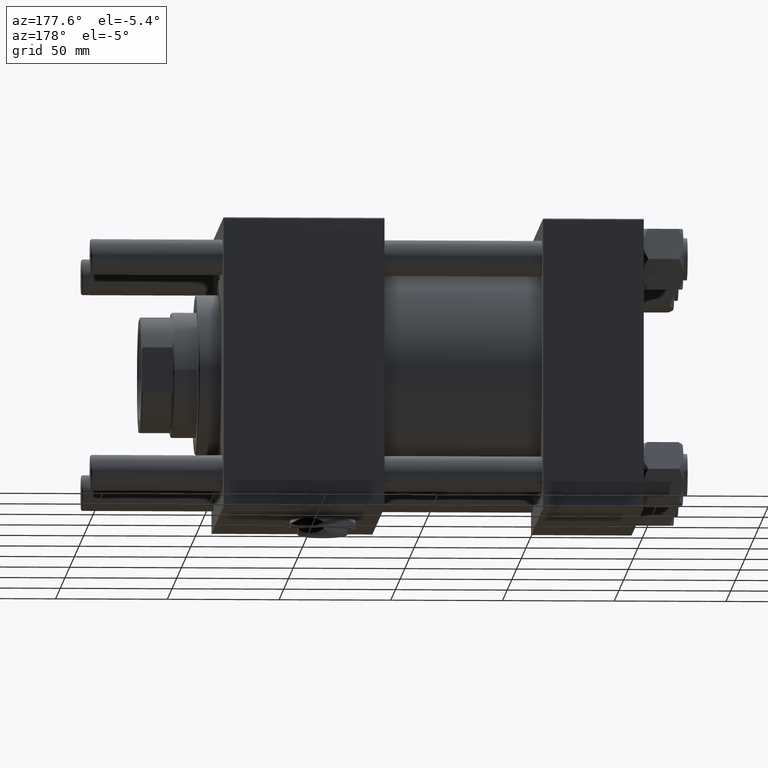
[diagram: clean part render]
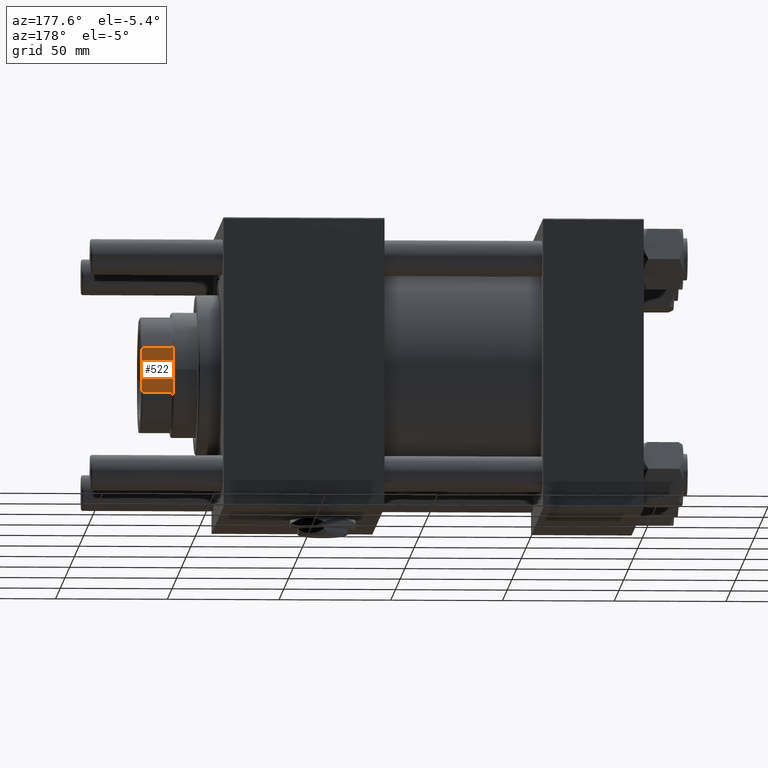
[diagram: same view with one face highlighted and labeled with its STEP entity id]
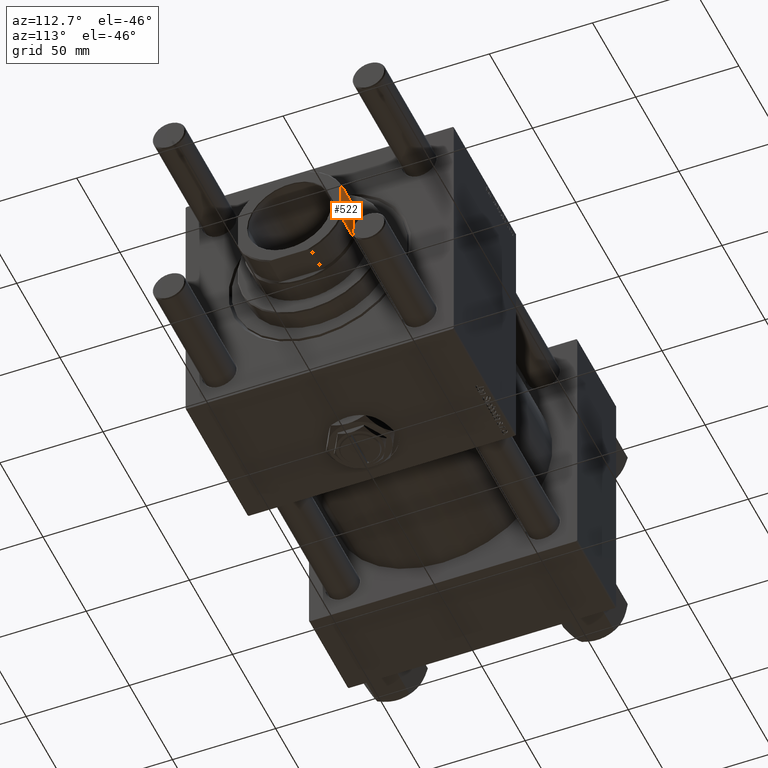
[diagram: same view with one face highlighted and labeled with its STEP entity id]
A machine part, auxiliary view. The second image highlights one B-rep face of the part: STEP entity #522.
A second angle (auxiliary view) of the same face is appended — the face is thin or edge-on in the first view.
In plain terms, the highlighted planar face has unit normal (0, -1, -0).
Its self-contained STEP definition (entity closure, byte-faithful):
#58 = CARTESIAN_POINT ( 'NONE',  ( -24.99999999999999645, -9.262276112429436381, 177.8430951735361134 ) ) ;
#347 = CARTESIAN_POINT ( 'NONE',  ( -25.00000000000000000, -9.731776668926020335, 177.6761096935718456 ) ) ;
#522 = ADVANCED_FACE ( 'NONE', ( #12196 ), #30365, .F. ) ;
#573 = ORIENTED_EDGE ( 'NONE', *, *, #45020, .T. ) ;
#597 = DIRECTION ( 'NONE',  ( 1.387778780781445676E-16, -1.000000000000000000, 0.000000000000000000 ) ) ;
#1130 = EDGE_LOOP ( 'NONE', ( #26524, #573, #20632, #1189, #47088, #37502, #26768, #26858 ) ) ;
#1189 = ORIENTED_EDGE ( 'NONE', *, *, #41474, .T. ) ;
#1271 = EDGE_CURVE ( 'NONE', #27391, #18471, #41423, .T. ) ;
#2229 = LINE ( 'NONE', #16247, #11367 ) ;
#3224 = DIRECTION ( 'NONE',  ( 1.000000000000000000, 1.387778780781445922E-16, -0.000000000000000000 ) ) ;
#3314 = CARTESIAN_POINT ( 'NONE',  ( -25.00000000000000000, 10.19803902718555655, 177.5000000000000000 ) ) ;
#3432 = LINE ( 'NONE', #25512, #34828 ) ;
#4085 = CARTESIAN_POINT ( 'NONE',  ( -25.00000000000000000, 11.45643923738958492, 164.0000000000000000 ) ) ;
#5096 = CARTESIAN_POINT ( 'NONE',  ( -25.00000000000000000, -10.19803902718555300, 177.5000000000000568 ) ) ;
#6829 = AXIS2_PLACEMENT_3D ( 'NONE', #44067, #3224, #21417 ) ;
#8870 = CARTESIAN_POINT ( 'NONE',  ( -25.00000000000000000, 11.45643923738958492, 164.0000000000000000 ) ) ;
#9007 = LINE ( 'NONE', #50716, #53026 ) ;
#9755 = CARTESIAN_POINT ( 'NONE',  ( -25.00000000000000000, -11.45643923738959025, 164.0000000000000000 ) ) ;
#10866 = CARTESIAN_POINT ( 'NONE',  ( -25.00000000000000000, -10.62014219435931039, 164.3405694602838025 ) ) ;
#11367 = VECTOR ( 'NONE', #12086, 1000.000000000000000 ) ;
#11495 = DIRECTION ( 'NONE',  ( -0.000000000000000000, -0.000000000000000000, 1.000000000000000000 ) ) ;
#12086 = DIRECTION ( 'NONE',  ( -0.000000000000000000, -0.000000000000000000, 1.000000000000000000 ) ) ;
#12102 = EDGE_CURVE ( 'NONE', #18471, #44387, #52037, .T. ) ;
#12196 = FACE_OUTER_BOUND ( 'NONE', #1130, .T. ) ;
#12558 = VERTEX_POINT ( 'NONE', #52375 ) ;
#13342 = CARTESIAN_POINT ( 'NONE',  ( -25.00000000000000000, 10.19803902718555122, 164.5000000000000000 ) ) ;
#14136 = EDGE_CURVE ( 'NONE', #54751, #27391, #44631, .T. ) ;
#15329 = CARTESIAN_POINT ( 'NONE',  ( -25.00000000000000000, -11.45643923738959025, 164.0000000000000000 ) ) ;
#16247 = CARTESIAN_POINT ( 'NONE',  ( -25.00000000000000000, 10.19803902718555655, -0.001000000000001000089 ) ) ;
#17353 = VECTOR ( 'NONE', #597, 1000.000000000000000 ) ;
#18235 = CARTESIAN_POINT ( 'NONE',  ( -24.99999999999999645, -8.789197915623496726, 178.0000000000000284 ) ) ;
#18471 = VERTEX_POINT ( 'NONE', #9755 ) ;
#20632 = ORIENTED_EDGE ( 'NONE', *, *, #45997, .F. ) ;
#21413 = B_SPLINE_CURVE_WITH_KNOTS ( 'NONE', 3,
 ( #44153, #43864, #49221, #3314 ),
 .UNSPECIFIED., .F., .F.,
 ( 4, 4 ),
 ( 0.000000000000000000, 0.001494935877430153244 ),
 .UNSPECIFIED. ) ;
#21417 = DIRECTION ( 'NONE',  ( -1.387778780781445922E-16, 1.000000000000000000, 0.000000000000000000 ) ) ;
#21942 = B_SPLINE_CURVE_WITH_KNOTS ( 'NONE', 3,
 ( #5096, #347, #58, #18235 ),
 .UNSPECIFIED., .F., .F.,
 ( 4, 4 ),
 ( 0.000000000000000000, 0.001494935877429992349 ),
 .UNSPECIFIED. ) ;
#22864 = CARTESIAN_POINT ( 'NONE',  ( -25.00000000000000000, 10.19803902718555655, 177.5000000000000000 ) ) ;
#23576 = CARTESIAN_POINT ( 'NONE',  ( -25.00000000000000000, 10.19803902718555122, 164.5000000000000000 ) ) ;
#25512 = CARTESIAN_POINT ( 'NONE',  ( -25.00000000000000000, -10.19803902718555300, -0.001000000000001000089 ) ) ;
#26144 = CARTESIAN_POINT ( 'NONE',  ( -24.99999999999999645, 8.789197915623349289, 178.0000000000000284 ) ) ;
#26524 = ORIENTED_EDGE ( 'NONE', *, *, #58840, .T. ) ;
#26768 = ORIENTED_EDGE ( 'NONE', *, *, #1271, .T. ) ;
#26858 = ORIENTED_EDGE ( 'NONE', *, *, #12102, .T. ) ;
#27391 = VERTEX_POINT ( 'NONE', #4085 ) ;
#30365 = PLANE ( 'NONE',  #6829 ) ;
#30759 = VERTEX_POINT ( 'NONE', #55496 ) ;
#31521 = CARTESIAN_POINT ( 'NONE',  ( -25.00000000000000000, 10.61983482933081646, 164.3406855536377691 ) ) ;
#32693 = VERTEX_POINT ( 'NONE', #22864 ) ;
#34828 = VECTOR ( 'NONE', #11495, 1000.000000000000000 ) ;
#37502 = ORIENTED_EDGE ( 'NONE', *, *, #14136, .T. ) ;
#37511 = CARTESIAN_POINT ( 'NONE',  ( -25.00000000000000000, 25.00000000000000000, 164.0000000000000000 ) ) ;
#41423 = LINE ( 'NONE', #37511, #17353 ) ;
#41474 = EDGE_CURVE ( 'NONE', #52530, #32693, #21413, .T. ) ;
#42160 = CARTESIAN_POINT ( 'NONE',  ( -25.00000000000000000, -11.03952915007668345, 164.1736838211911049 ) ) ;
#42465 = CARTESIAN_POINT ( 'NONE',  ( -25.00000000000000000, -10.19803902718555300, 164.5000000000000000 ) ) ;
#43864 = CARTESIAN_POINT ( 'NONE',  ( -24.99999999999999645, 9.262276112429335129, 177.8430951735361134 ) ) ;
#44067 = CARTESIAN_POINT ( 'NONE',  ( -25.00000000000000000, 25.00000000000000000, 178.0000000000000284 ) ) ;
#44153 = CARTESIAN_POINT ( 'NONE',  ( -24.99999999999999645, 8.789197915623349289, 178.0000000000000284 ) ) ;
#44387 = VERTEX_POINT ( 'NONE', #54445 ) ;
#44631 = B_SPLINE_CURVE_WITH_KNOTS ( 'NONE', 3,
 ( #13342, #31521, #49704, #8870 ),
 .UNSPECIFIED., .F., .F.,
 ( 4, 4 ),
 ( 0.1347300791724978242, 0.1360693631961248928 ),
 .UNSPECIFIED. ) ;
#45020 = EDGE_CURVE ( 'NONE', #30759, #12558, #21942, .T. ) ;
#45997 = EDGE_CURVE ( 'NONE', #52530, #12558, #9007, .T. ) ;
#46244 = DIRECTION ( 'NONE',  ( 1.387778780781445676E-16, -1.000000000000000000, 0.000000000000000000 ) ) ;
#47088 = ORIENTED_EDGE ( 'NONE', *, *, #52814, .F. ) ;
#49221 = CARTESIAN_POINT ( 'NONE',  ( -24.99999999999999645, 9.731776668925968821, 177.6761096935717887 ) ) ;
#49704 = CARTESIAN_POINT ( 'NONE',  ( -25.00000000000000000, 11.03923433039705593, 164.1738066424182136 ) ) ;
#50716 = CARTESIAN_POINT ( 'NONE',  ( -25.00000000000000000, 25.00000000000000000, 178.0000000000000284 ) ) ;
#52037 = B_SPLINE_CURVE_WITH_KNOTS ( 'NONE', 3,
 ( #15329, #42160, #10866, #42465 ),
 .UNSPECIFIED., .F., .F.,
 ( 4, 4 ),
 ( 0.1613657269701884445, 0.1626835971102010281 ),
 .UNSPECIFIED. ) ;
#52375 = CARTESIAN_POINT ( 'NONE',  ( -24.99999999999999645, -8.789197915623496726, 178.0000000000000284 ) ) ;
#52530 = VERTEX_POINT ( 'NONE', #26144 ) ;
#52814 = EDGE_CURVE ( 'NONE', #54751, #32693, #2229, .T. ) ;
#53026 = VECTOR ( 'NONE', #46244, 1000.000000000000000 ) ;
#54445 = CARTESIAN_POINT ( 'NONE',  ( -25.00000000000000000, -10.19803902718555300, 164.5000000000000000 ) ) ;
#54751 = VERTEX_POINT ( 'NONE', #23576 ) ;
#55496 = CARTESIAN_POINT ( 'NONE',  ( -25.00000000000000000, -10.19803902718555300, 177.5000000000000568 ) ) ;
#58840 = EDGE_CURVE ( 'NONE', #44387, #30759, #3432, .T. ) ;